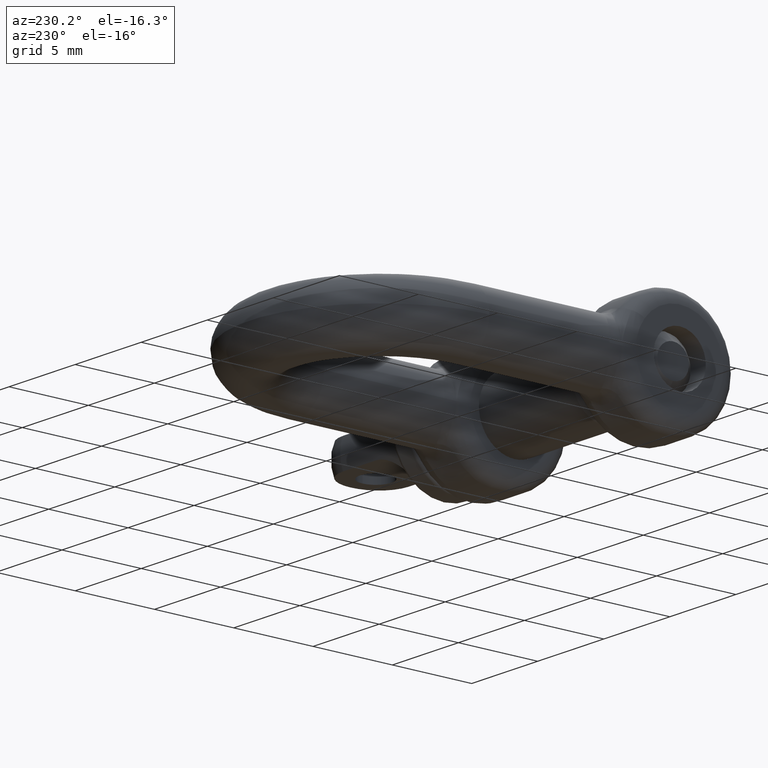
[diagram: clean part render]
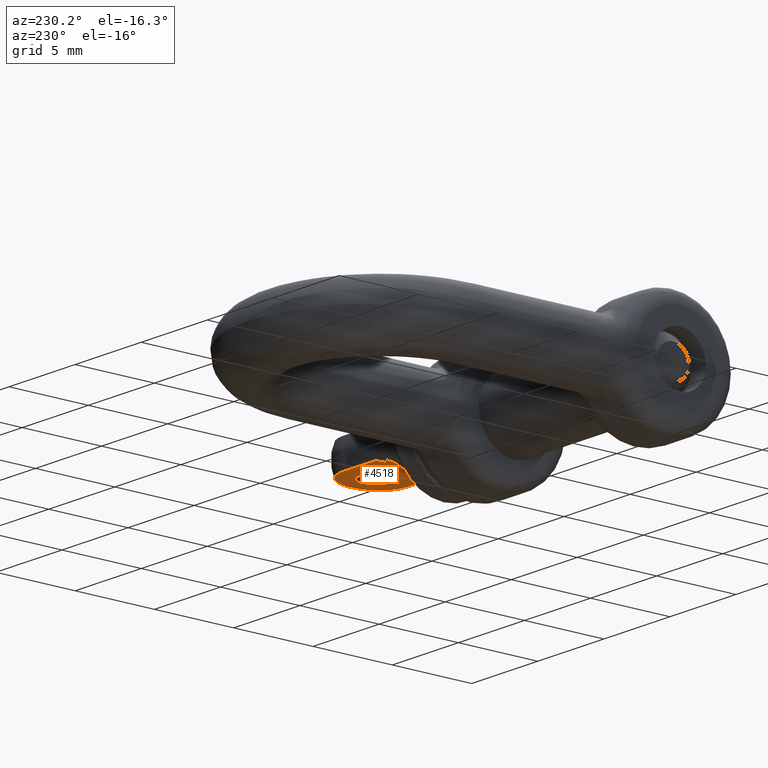
[diagram: same view with one face highlighted and labeled with its STEP entity id]
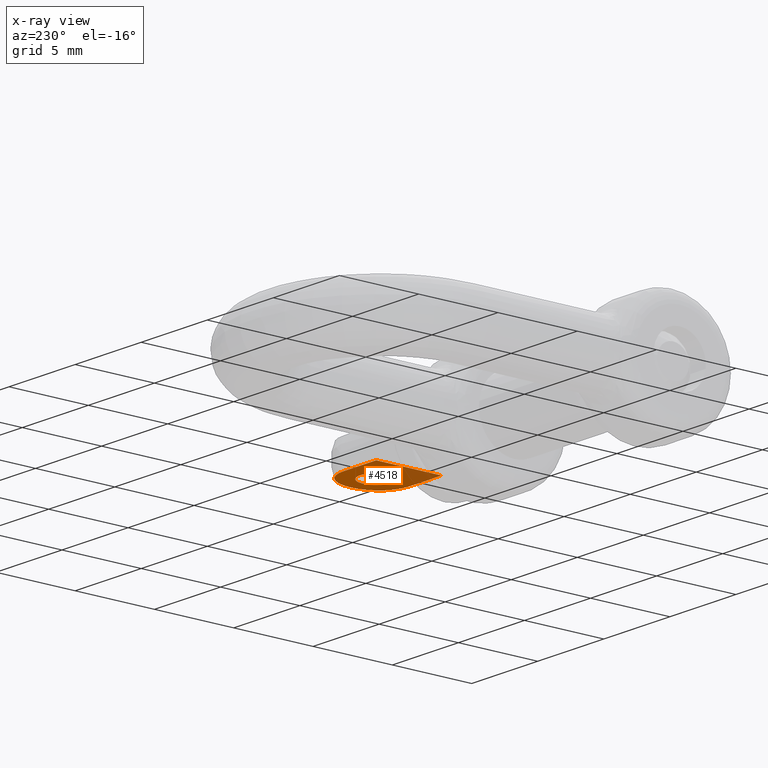
[diagram: x-ray of the same camera — body ghosted, the highlighted face saturated]
A machine part, auxiliary view. The second image highlights one B-rep face of the part: STEP entity #4518.
The next image is the same camera in x-ray: the body ghosted, the highlighted face saturated — about 19% of this face is hidden behind the body in this view.
In plain terms, the highlighted planar face has unit normal (0, 0, 1).
Its self-contained STEP definition (entity closure, byte-faithful):
#2 = VERTEX_POINT ( 'NONE', #12766 ) ;
#181 = CARTESIAN_POINT ( 'NONE',  ( 14.22788316150852400, -0.8885347635341451800, -0.9000000000000008000 ) ) ;
#268 = CARTESIAN_POINT ( 'NONE',  ( 13.69859056821591100, -1.623456874645489800, -0.9000000000000005800 ) ) ;
#272 = EDGE_CURVE ( 'NONE', #11601, #9413, #6637, .T. ) ;
#357 = CARTESIAN_POINT ( 'NONE',  ( 13.49025200080579300, -1.777564726052289800, -0.9000000000000005800 ) ) ;
#589 = CARTESIAN_POINT ( 'NONE',  ( 14.38186697470523400, 0.2600725015327278200, -0.9000000000000005800 ) ) ;
#950 = ORIENTED_EDGE ( 'NONE', *, *, #7061, .T. ) ;
#1108 = DIRECTION ( 'NONE',  ( 1.000000000000000000, 0.0000000000000000000, 0.0000000000000000000 ) ) ;
#1240 = CARTESIAN_POINT ( 'NONE',  ( 14.04441684555086500, -1.233602730185267900, -0.9000000000000005800 ) ) ;
#1290 = CARTESIAN_POINT ( 'NONE',  ( 14.39142803193777300, -2.159742164526316100E-017, -0.9000000000000005800 ) ) ;
#1704 = CARTESIAN_POINT ( 'NONE',  ( 14.04342145953064100, 1.235191014786084500, -0.9000000000000005800 ) ) ;
#1754 = CARTESIAN_POINT ( 'NONE',  ( 14.31108299715055500, 0.6450014362490766900, -0.9000000000000004700 ) ) ;
#1768 = PLANE ( 'NONE',  #13366 ) ;
#1916 = CIRCLE ( 'NONE', #12390, 0.9999999999999991100 ) ;
#2279 = FACE_OUTER_BOUND ( 'NONE', #13451, .T. ) ;
#2311 = CARTESIAN_POINT ( 'NONE',  ( 13.13896607642178800, -1.952157793391349600, -0.9000000000000005800 ) ) ;
#2446 = CARTESIAN_POINT ( 'NONE',  ( 14.39142803193777100, -0.2612257021649461700, -0.9000000000000004700 ) ) ;
#2722 = CARTESIAN_POINT ( 'NONE',  ( 11.50000000000000000, 1.224646799147353200E-016, -0.9000000000000005800 ) ) ;
#2770 = CIRCLE ( 'NONE', #3454, 0.9999999999999991100 ) ;
#2866 = CARTESIAN_POINT ( 'NONE',  ( 14.39142803193777300, -2.159742164526316100E-017, -0.9000000000000005800 ) ) ;
#3357 = CARTESIAN_POINT ( 'NONE',  ( 12.49999999999999800, -2.062159062730127600, -0.9000000000000005800 ) ) ;
#3401 = CARTESIAN_POINT ( 'NONE',  ( 14.17375390542727900, -1.008930729768836600, -0.9000000000000005800 ) ) ;
#3445 = CARTESIAN_POINT ( 'NONE',  ( 14.35395432953614800, -0.5186835465555519300, -0.9000000000000004700 ) ) ;
#3454 = AXIS2_PLACEMENT_3D ( 'NONE', #11943, #5653, #9891 ) ;
#3469 = DIRECTION ( 'NONE',  ( -1.000000000000000000, -0.0000000000000000000, -0.0000000000000000000 ) ) ;
#3727 = CARTESIAN_POINT ( 'NONE',  ( 14.22686444273517400, 0.8909635116540949300, -0.9000000000000005800 ) ) ;
#3875 = VECTOR ( 'NONE', #7801, 1000.000000000000000 ) ;
#3929 = CARTESIAN_POINT ( 'NONE',  ( 13.48762013072488100, 1.779320311658497000, -0.9000000000000005800 ) ) ;
#4445 = DIRECTION ( 'NONE',  ( -0.0000000000000000000, 0.0000000000000000000, 1.000000000000000000 ) ) ;
#4518 = ADVANCED_FACE ( 'NONE', ( #9369, #2279 ), #1768, .F. ) ;
#4818 = B_SPLINE_CURVE_WITH_KNOTS ( 'NONE', 3,
 ( #1290, #2446, #3445, #181, #3401, #1240, #8640, #5487, #268, #357, #9815, #2311, #6552, #11916, #9685, #3357 ),
 .UNSPECIFIED., .F., .F.,
 ( 4, 2, 2, 2, 2, 2, 2, 4 ),
 ( 0.003106750376229712000, 0.003883692383929588900, 0.004272163387779527100, 0.004660634391629465300, 0.005049105395479404300, 0.005437576399329341700, 0.005826047403179280800, 0.006214518407029219000 ),
 .UNSPECIFIED. ) ;
#4911 = EDGE_CURVE ( 'NONE', #13089, #12020, #2770, .T. ) ;
#5487 = CARTESIAN_POINT ( 'NONE',  ( 13.79433584521242800, -1.535953169192860700, -0.9000000000000005800 ) ) ;
#5490 = VERTEX_POINT ( 'NONE', #12807 ) ;
#5653 = DIRECTION ( 'NONE',  ( -0.0000000000000000000, 0.0000000000000000000, 1.000000000000000000 ) ) ;
#5687 = LINE ( 'NONE', #8809, #3875 ) ;
#5882 = DIRECTION ( 'NONE',  ( -1.000000000000000000, -0.0000000000000000000, -0.0000000000000000000 ) ) ;
#6552 = CARTESIAN_POINT ( 'NONE',  ( 13.01594465396227400, -1.992903311938197400, -0.9000000000000005800 ) ) ;
#6637 = LINE ( 'NONE', #12178, #8927 ) ;
#6653 = CARTESIAN_POINT ( 'NONE',  ( 12.49999999999999800, 0.0000000000000000000, -0.9000000000000005800 ) ) ;
#6932 = CARTESIAN_POINT ( 'NONE',  ( 14.34197647336057100, 0.5167581848571966000, -0.9000000000000004700 ) ) ;
#7061 = EDGE_CURVE ( 'NONE', #7299, #5490, #10899, .T. ) ;
#7170 = CARTESIAN_POINT ( 'NONE',  ( 12.49999999999999800, 2.062159062730127600, -0.9000000000000005800 ) ) ;
#7178 = CARTESIAN_POINT ( 'NONE',  ( 12.49999999999999800, -2.062159062730127600, -0.9000000000000005800 ) ) ;
#7208 = ORIENTED_EDGE ( 'NONE', *, *, #13320, .T. ) ;
#7254 = VECTOR ( 'NONE', #3469, 1000.000000000000000 ) ;
#7263 = CARTESIAN_POINT ( 'NONE',  ( 13.49999999999999800, 0.0000000000000000000, -0.9000000000000005800 ) ) ;
#7299 = VERTEX_POINT ( 'NONE', #7170 ) ;
#7677 = ORIENTED_EDGE ( 'NONE', *, *, #9447, .F. ) ;
#7801 = DIRECTION ( 'NONE',  ( -0.0000000000000000000, 1.000000000000000000, -0.0000000000000000000 ) ) ;
#7990 = CARTESIAN_POINT ( 'NONE',  ( 14.39142803193777500, 0.1305700812349618600, -0.9000000000000005800 ) ) ;
#8091 = CARTESIAN_POINT ( 'NONE',  ( 12.76026137309460200, 2.048206051750345300, -0.9000000000000006900 ) ) ;
#8140 = CARTESIAN_POINT ( 'NONE',  ( 13.13927028022663600, 1.952024560887731800, -0.9000000000000005800 ) ) ;
#8356 = CARTESIAN_POINT ( 'NONE',  ( 10.00000000000000000, -2.062159062730127600, -0.9000000000000005800 ) ) ;
#8527 = ORIENTED_EDGE ( 'NONE', *, *, #11804, .T. ) ;
#8640 = CARTESIAN_POINT ( 'NONE',  ( 13.96859623279340000, -1.339572147097796800, -0.9000000000000005800 ) ) ;
#8692 = DIRECTION ( 'NONE',  ( 1.000000000000000000, 0.0000000000000000000, 0.0000000000000000000 ) ) ;
#8809 = CARTESIAN_POINT ( 'NONE',  ( 10.00000000000000000, 2.062159062730127600, -0.9000000000000005800 ) ) ;
#8927 = VECTOR ( 'NONE', #5882, 1000.000000000000000 ) ;
#8999 = CARTESIAN_POINT ( 'NONE',  ( 13.96660777000959000, 1.341949478768059300, -0.9000000000000005800 ) ) ;
#9179 = CARTESIAN_POINT ( 'NONE',  ( 14.17370158134144400, 1.009161298887868400, -0.9000000000000004700 ) ) ;
#9292 = ORIENTED_EDGE ( 'NONE', *, *, #272, .T. ) ;
#9369 = FACE_BOUND ( 'NONE', #12838, .T. ) ;
#9413 = VERTEX_POINT ( 'NONE', #8356 ) ;
#9447 = EDGE_CURVE ( 'NONE', #7299, #2, #11355, .T. ) ;
#9685 = CARTESIAN_POINT ( 'NONE',  ( 12.62963962496387000, -2.062159062730128100, -0.9000000000000005800 ) ) ;
#9815 = CARTESIAN_POINT ( 'NONE',  ( 13.37610694705466900, -1.844751467029782000, -0.9000000000000005800 ) ) ;
#9818 = ORIENTED_EDGE ( 'NONE', *, *, #13203, .T. ) ;
#9891 = DIRECTION ( 'NONE',  ( 1.000000000000000000, 0.0000000000000000000, 0.0000000000000000000 ) ) ;
#10049 = CARTESIAN_POINT ( 'NONE',  ( 13.69773061928580500, 1.624281031651025900, -0.9000000000000006900 ) ) ;
#10142 = CARTESIAN_POINT ( 'NONE',  ( 13.79455932335085300, 1.535563461947230300, -0.9000000000000005800 ) ) ;
#10196 = CARTESIAN_POINT ( 'NONE',  ( 12.63132215400232100, 2.062159062730128100, -0.9000000000000004700 ) ) ;
#10720 = ORIENTED_EDGE ( 'NONE', *, *, #4911, .T. ) ;
#10899 = B_SPLINE_CURVE_WITH_KNOTS ( 'NONE', 3,
 ( #13333, #10196, #8091, #13236, #8140, #13282, #3929, #10049, #10142, #8999, #1704, #9179, #3727, #1754, #6932, #589, #7990, #2866 ),
 .UNSPECIFIED., .F., .F.,
 ( 4, 2, 2, 2, 2, 2, 2, 2, 4 ),
 ( 0.0000000000000000000, 0.0003883437970287137300, 0.0007766875940574274600, 0.001165031391086141500, 0.001553375188114855600, 0.001941718985143569600, 0.002330062782172283500, 0.002718406579200998000, 0.003106750376229712000 ),
 .UNSPECIFIED. ) ;
#11355 = LINE ( 'NONE', #12829, #7254 ) ;
#11601 = VERTEX_POINT ( 'NONE', #7178 ) ;
#11804 = EDGE_CURVE ( 'NONE', #12020, #13089, #1916, .T. ) ;
#11916 = CARTESIAN_POINT ( 'NONE',  ( 12.76089719007095100, -2.048180242148087700, -0.9000000000000005800 ) ) ;
#11943 = CARTESIAN_POINT ( 'NONE',  ( 12.49999999999999800, 0.0000000000000000000, -0.9000000000000005800 ) ) ;
#12020 = VERTEX_POINT ( 'NONE', #2722 ) ;
#12178 = CARTESIAN_POINT ( 'NONE',  ( 14.49999999999999800, -2.062159062730127600, -0.9000000000000005800 ) ) ;
#12390 = AXIS2_PLACEMENT_3D ( 'NONE', #6653, #4445, #8692 ) ;
#12683 = DIRECTION ( 'NONE',  ( -0.0000000000000000000, 0.0000000000000000000, 1.000000000000000000 ) ) ;
#12766 = CARTESIAN_POINT ( 'NONE',  ( 10.00000000000000000, 2.062159062730127600, -0.9000000000000005800 ) ) ;
#12807 = CARTESIAN_POINT ( 'NONE',  ( 14.39142803193777300, -2.159742164526316100E-017, -0.9000000000000005800 ) ) ;
#12829 = CARTESIAN_POINT ( 'NONE',  ( 14.49999999999999800, 2.062159062730127600, -0.9000000000000005800 ) ) ;
#12838 = EDGE_LOOP ( 'NONE', ( #10720, #8527 ) ) ;
#13089 = VERTEX_POINT ( 'NONE', #7263 ) ;
#13203 = EDGE_CURVE ( 'NONE', #5490, #11601, #4818, .T. ) ;
#13236 = CARTESIAN_POINT ( 'NONE',  ( 13.01356779919568900, 1.993529120299524200, -0.9000000000000005800 ) ) ;
#13282 = CARTESIAN_POINT ( 'NONE',  ( 13.37590985879739400, 1.844836182480338800, -0.9000000000000005800 ) ) ;
#13320 = EDGE_CURVE ( 'NONE', #9413, #2, #5687, .T. ) ;
#13333 = CARTESIAN_POINT ( 'NONE',  ( 12.49999999999999800, 2.062159062730127600, -0.9000000000000005800 ) ) ;
#13366 = AXIS2_PLACEMENT_3D ( 'NONE', #13399, #12683, #1108 ) ;
#13399 = CARTESIAN_POINT ( 'NONE',  ( 14.49999999999999800, 2.062159062730127600, -0.9000000000000005800 ) ) ;
#13451 = EDGE_LOOP ( 'NONE', ( #9292, #7208, #7677, #950, #9818 ) ) ;